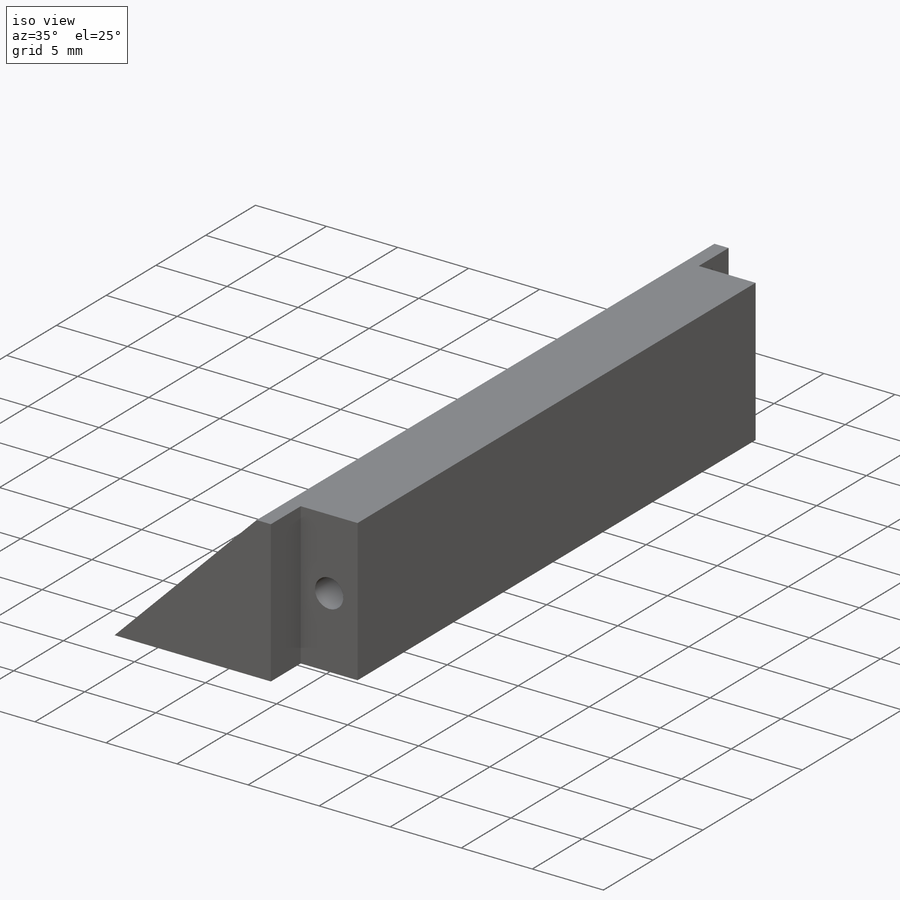
[diagram: iso view]
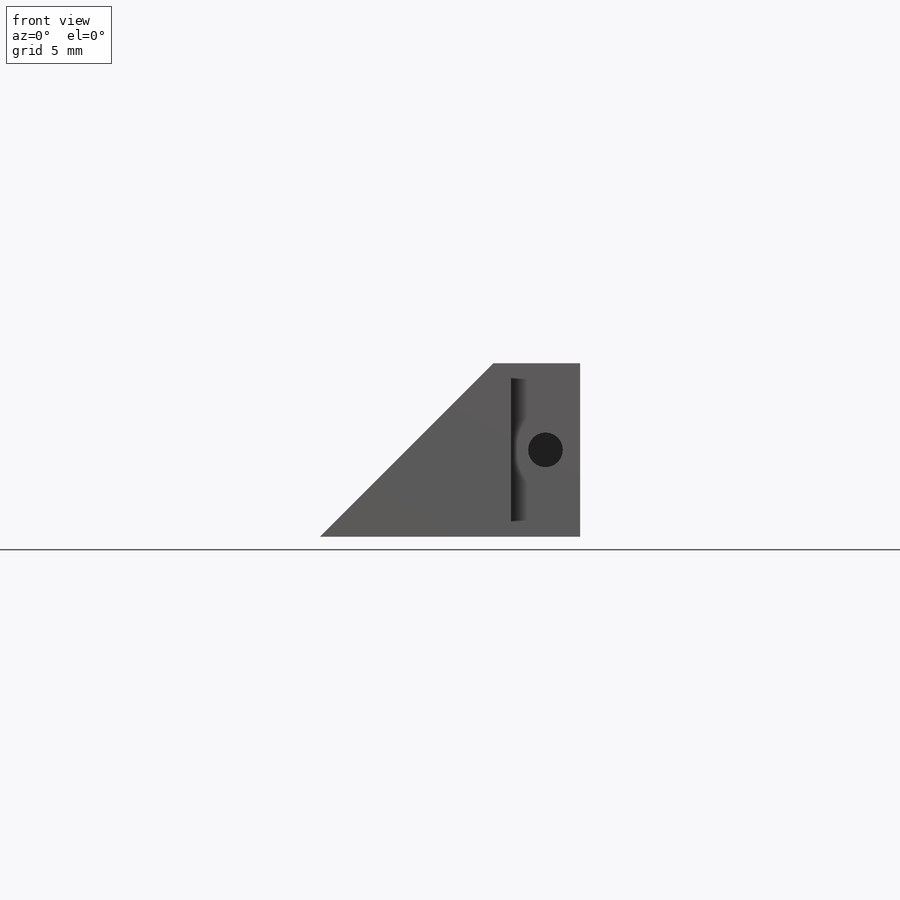
[diagram: front view]
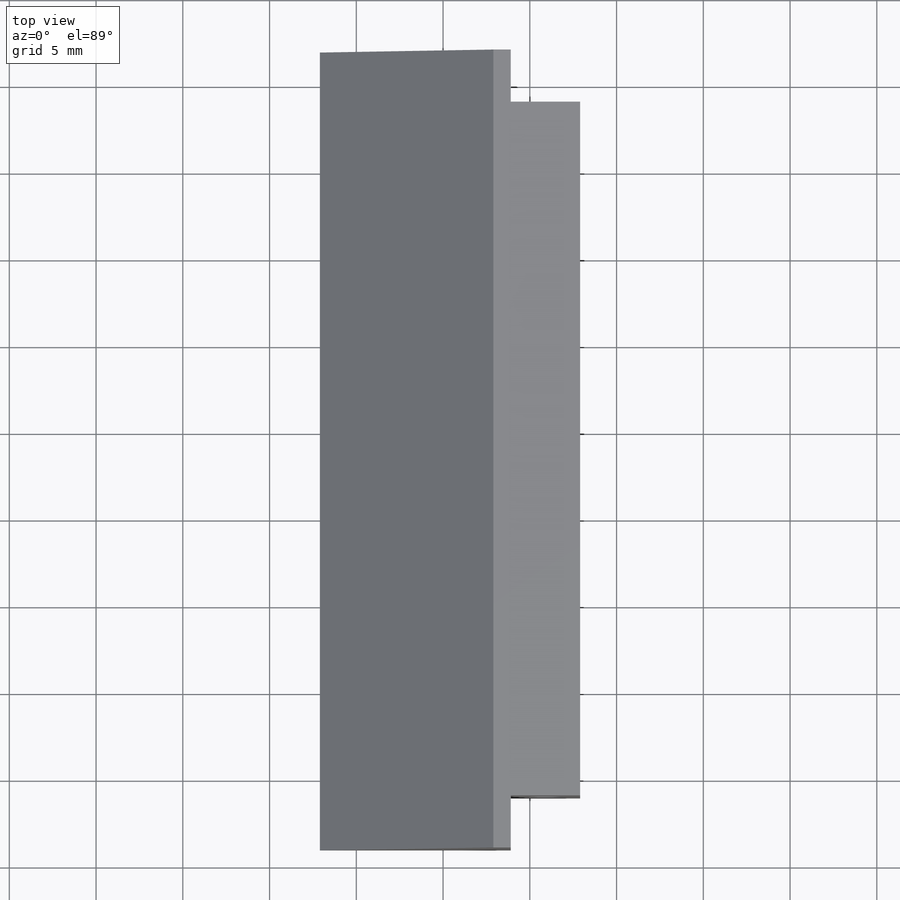
[diagram: top view]
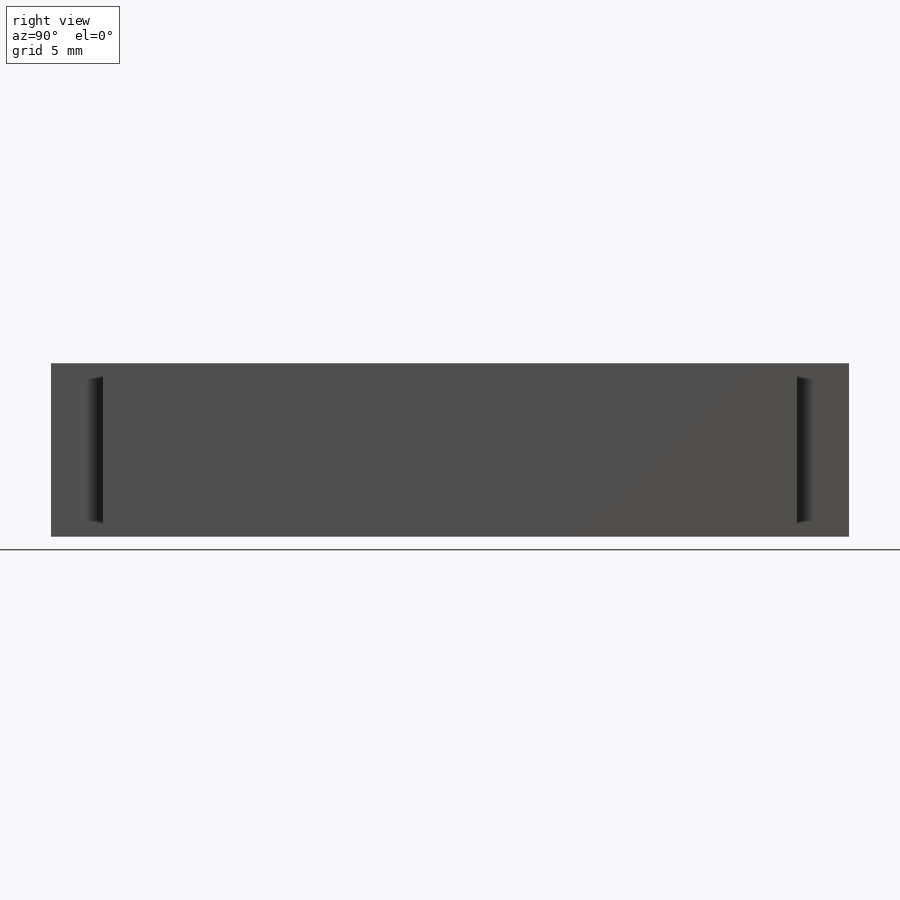
[diagram: right view]
SOLIDWORKS PART (.sldprt)
format: sldprt  version: not decoded by parser v0  size: 208,896 bytes
history: native  units: mm
features: sketch x7, cut_extrude x6, material x1, extrude x1 (+13 scaffold rows collapsed)
feature tree (28):
  scaffold x13  (default folders/planes/origin — collapsed)
  material  "Malleable Cast Iron"
  sketch  "Sketch1"  dims[c1.D1=~19.962322mm c1.D2=135.0deg c2.D1=~8.712536mm c2.D2=120.0deg c3.D1=10.0mm]
  extrude  "Boss-Extrude1"  Depth=52mm
  sketch  "Sketch4"  dims[c1.D1=~17.745365mm c1.D2=~10.974754mm c2.D1=12.0mm c2.D2=6.0mm c3.D1=12.0mm c3.D2=~6.443013mm c4.D1=4.0mm c4.D2=~0.297663mm c5.D1=~18.936484mm c5.D2=~5.47714mm c6.D1=~12.132883mm c6.D2=~4.708173mm c7.D1=~12.132883mm c7.D2=~6.112005mm c8.D1=5.0mm c8.D2=~12.132883mm c9.D1=12.0mm c9.D2=~5.08696mm c10.D1=4.0mm c11.D1=4.0mm c11.D2=12.0mm c12.D1=4.0mm c12.D2=10.0mm]
  cut_extrude  "Cut-Extrude1"  Depth=6mm
  sketch  "Sketch5"  dims[D1=4.0mm D2=10.0mm]
  cut_extrude  "Cut-Extrude2"  Depth=6mm
  sketch  "Sketch6"
  cut_extrude  "Cut-Extrude3"  Depth=3mm
  sketch  "Sketch7"
  cut_extrude  "Cut-Extrude4"  Depth=3mm
  sketch  "Sketch8"  dims[D1=~0.928689mm]
  cut_extrude  "Cut-Extrude5"  Depth=10mm
  sketch  "Sketch9"  dims[D1=~1.201357mm]
  cut_extrude  "Cut-Extrude6"  Depth=10mm
decode coverage: 12 of 14 modeling features carry decoded parameters
note: ~ marks probable driven/reference dimensions
note: suppression state not decoded; provenance and decode notes live in map.json
